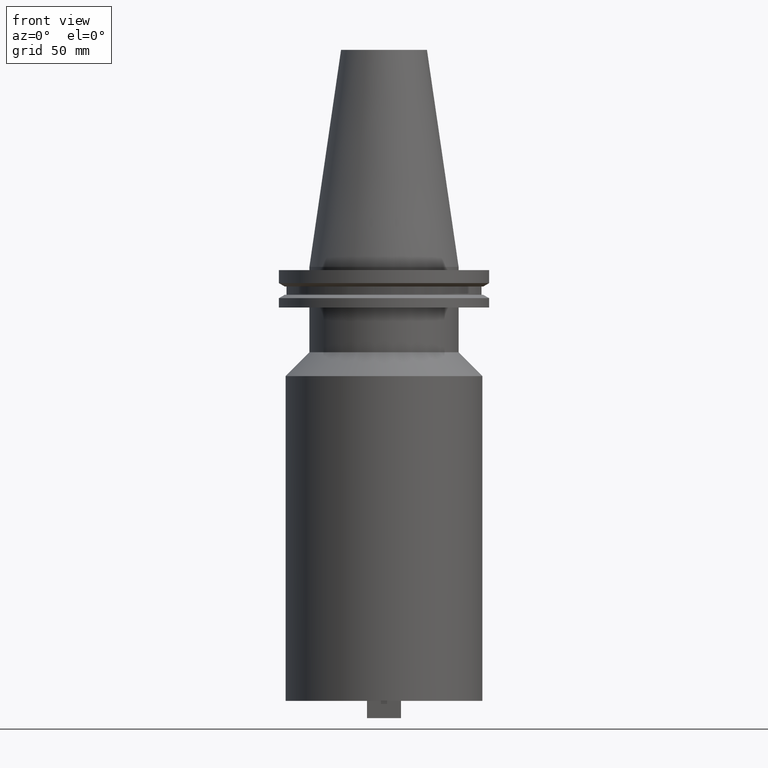
[diagram: clean part render]
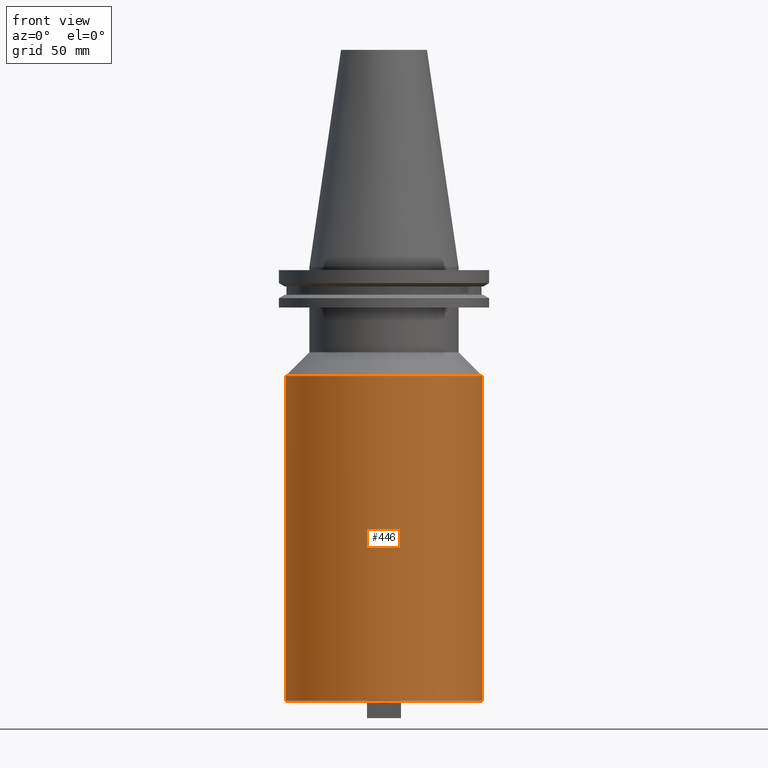
[diagram: same view with one face highlighted and labeled with its STEP entity id]
A machine part, front view. The second image highlights one B-rep face of the part: STEP entity #446.
In plain terms, the highlighted cylindrical surface (partial cylindrical patch) has radius 46.05 mm, axis along (-0, -0, 1).
Its self-contained STEP definition (entity closure, byte-faithful):
#24 = VERTEX_POINT ( 'NONE', #949 ) ;
#38 = DIRECTION ( 'NONE',  ( -0.000000000000000000, -0.000000000000000000, 1.000000000000000000 ) ) ;
#61 = ORIENTED_EDGE ( 'NONE', *, *, #953, .T. ) ;
#106 = CIRCLE ( 'NONE', #396, 46.04999999999999716 ) ;
#112 = CARTESIAN_POINT ( 'NONE',  ( 46.04999999999999716, 0.000000000000000000, 0.000000000000000000 ) ) ;
#119 = FACE_OUTER_BOUND ( 'NONE', #575, .T. ) ;
#168 = CARTESIAN_POINT ( 'NONE',  ( 0.000000000000000000, 0.000000000000000000, -203.1999999999999886 ) ) ;
#178 = EDGE_CURVE ( 'NONE', #814, #1044, #106, .T. ) ;
#185 = CARTESIAN_POINT ( 'NONE',  ( 0.000000000000000000, 0.000000000000000000, -51.12499999999995026 ) ) ;
#187 = EDGE_CURVE ( 'NONE', #24, #814, #955, .T. ) ;
#192 = CIRCLE ( 'NONE', #686, 46.04999999999999716 ) ;
#224 = ORIENTED_EDGE ( 'NONE', *, *, #823, .T. ) ;
#267 = DIRECTION ( 'NONE',  ( -0.000000000000000000, -0.000000000000000000, 1.000000000000000000 ) ) ;
#269 = ORIENTED_EDGE ( 'NONE', *, *, #187, .F. ) ;
#301 = AXIS2_PLACEMENT_3D ( 'NONE', #552, #38, #897 ) ;
#328 = ORIENTED_EDGE ( 'NONE', *, *, #178, .F. ) ;
#338 = VERTEX_POINT ( 'NONE', #500 ) ;
#350 = DIRECTION ( 'NONE',  ( 1.000000000000000000, 0.000000000000000000, 0.000000000000000000 ) ) ;
#373 = DIRECTION ( 'NONE',  ( 1.000000000000000000, 0.000000000000000000, 0.000000000000000000 ) ) ;
#396 = AXIS2_PLACEMENT_3D ( 'NONE', #185, #267, #373 ) ;
#426 = VECTOR ( 'NONE', #981, 1000.000000000000000 ) ;
#433 = CARTESIAN_POINT ( 'NONE',  ( -46.04999999999999716, 0.000000000000000000, -51.12499999999995026 ) ) ;
#438 = DIRECTION ( 'NONE',  ( -0.000000000000000000, -0.000000000000000000, 1.000000000000000000 ) ) ;
#446 = ADVANCED_FACE ( 'NONE', ( #119 ), #721, .T. ) ;
#448 = CARTESIAN_POINT ( 'NONE',  ( -46.04999999999999716, 5.639498510073560988E-15, 0.000000000000000000 ) ) ;
#461 = CARTESIAN_POINT ( 'NONE',  ( 46.04999999999999716, 5.639498510073560988E-15, -51.12499999999995026 ) ) ;
#500 = CARTESIAN_POINT ( 'NONE',  ( 46.04999999999999716, 0.000000000000000000, -203.1999999999999886 ) ) ;
#552 = CARTESIAN_POINT ( 'NONE',  ( 0.000000000000000000, 0.000000000000000000, 0.000000000000000000 ) ) ;
#575 = EDGE_LOOP ( 'NONE', ( #269, #224, #61, #328 ) ) ;
#686 = AXIS2_PLACEMENT_3D ( 'NONE', #168, #438, #350 ) ;
#700 = DIRECTION ( 'NONE',  ( -0.000000000000000000, -0.000000000000000000, 1.000000000000000000 ) ) ;
#721 = CYLINDRICAL_SURFACE ( 'NONE', #301, 46.04999999999999716 ) ;
#814 = VERTEX_POINT ( 'NONE', #433 ) ;
#823 = EDGE_CURVE ( 'NONE', #24, #338, #192, .T. ) ;
#897 = DIRECTION ( 'NONE',  ( 1.000000000000000000, 0.000000000000000000, 0.000000000000000000 ) ) ;
#949 = CARTESIAN_POINT ( 'NONE',  ( -46.04999999999999716, 5.639498510073560988E-15, -203.1999999999999886 ) ) ;
#953 = EDGE_CURVE ( 'NONE', #338, #1044, #986, .T. ) ;
#955 = LINE ( 'NONE', #448, #967 ) ;
#967 = VECTOR ( 'NONE', #700, 1000.000000000000000 ) ;
#981 = DIRECTION ( 'NONE',  ( -0.000000000000000000, -0.000000000000000000, 1.000000000000000000 ) ) ;
#986 = LINE ( 'NONE', #112, #426 ) ;
#1044 = VERTEX_POINT ( 'NONE', #461 ) ;